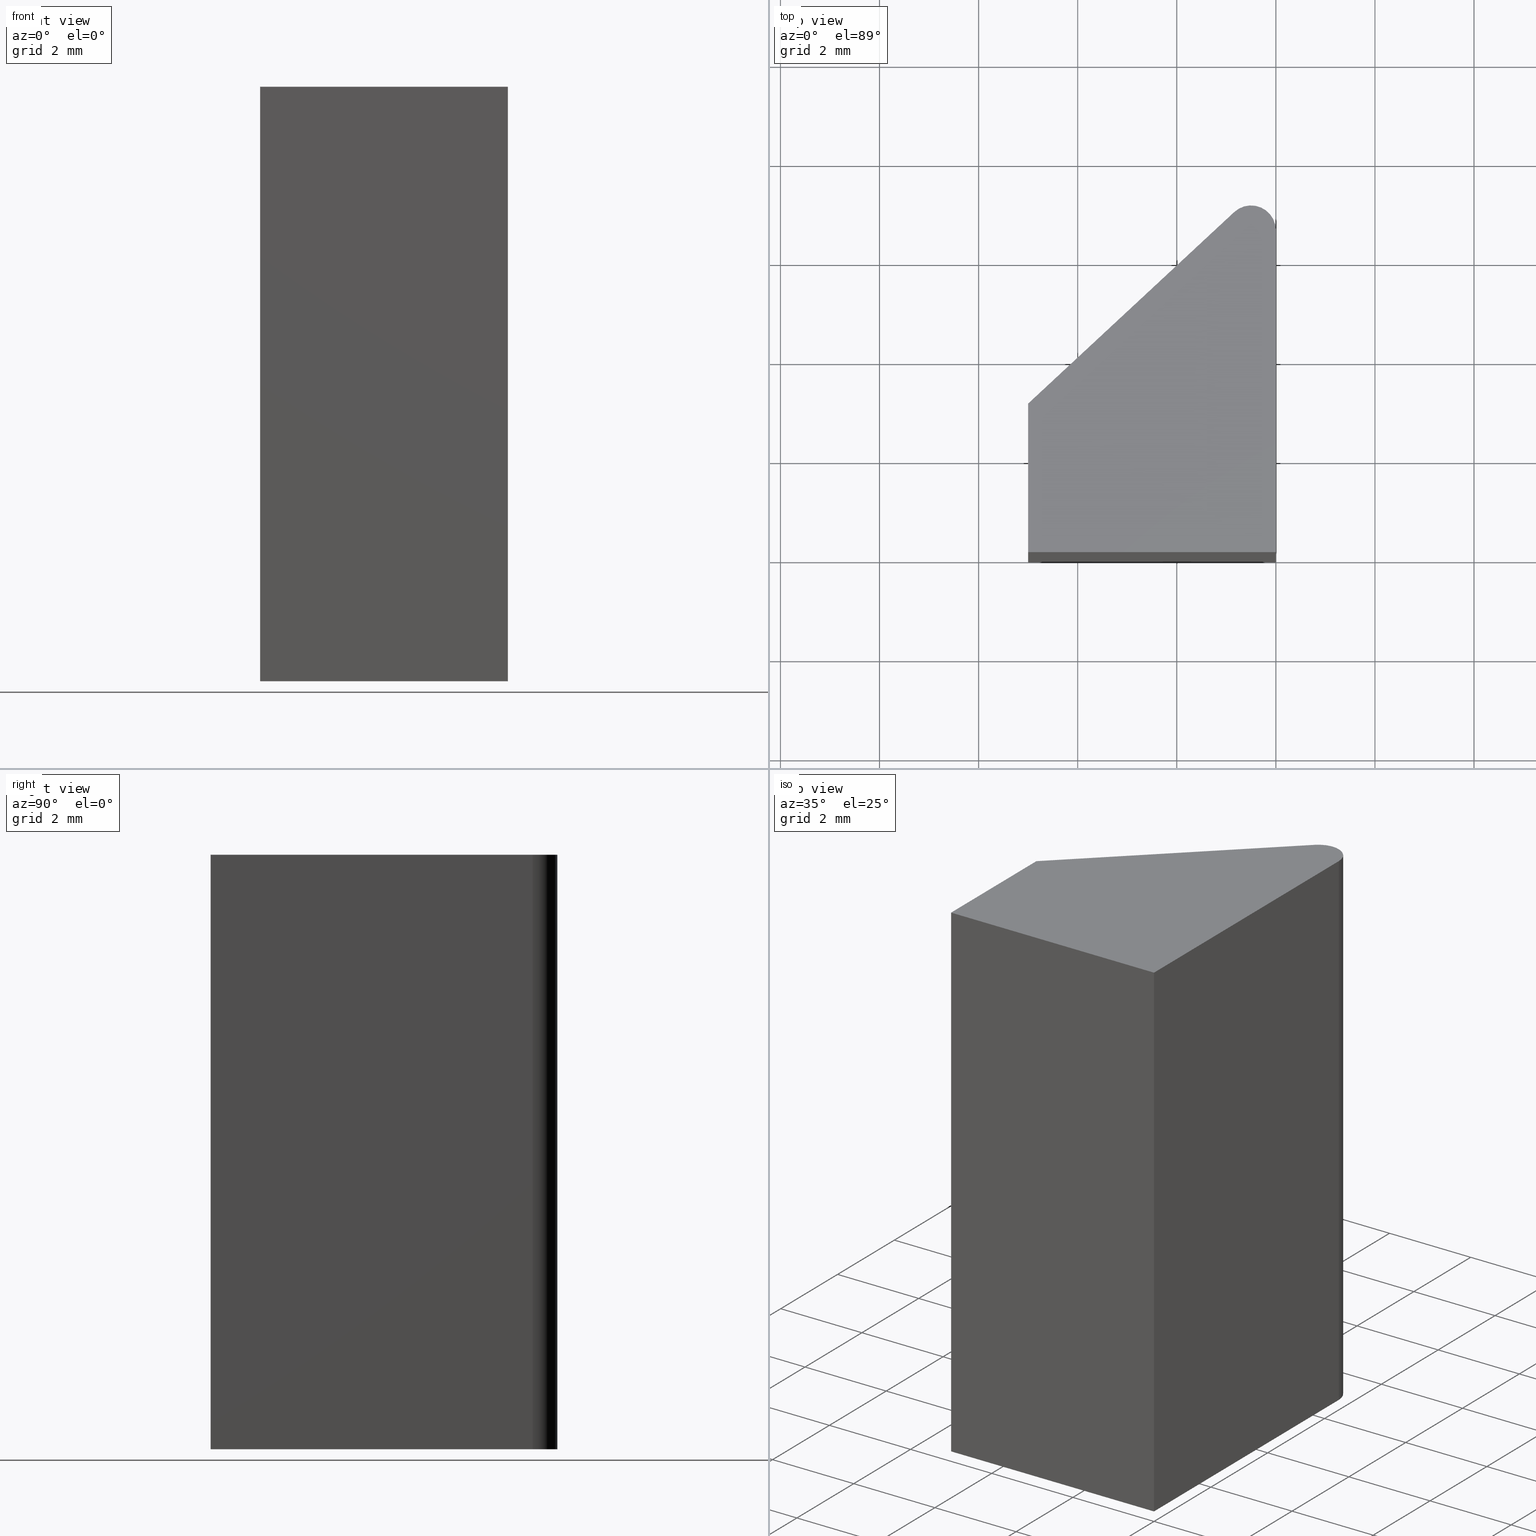
[diagram: canonical four-view strip — front | top / right | iso, engineering-drawing reading convention]
A machine part, canonical four-view strip (front | top / right | iso — engineering-drawing reading convention). The complete STEP part file that produces these views, byte-faithful:
ISO-10303-21;
HEADER;
/* Generated by software containing ST-Developer
 * from STEP Tools, Inc. (www.steptools.com) 
 */

FILE_DESCRIPTION(
/* description */ (''),
/* implementation_level */ '2;1');

FILE_NAME(
/* name */ 'E_3_01_06_06_00_WKZ-0222.stp',
/* time_stamp */ '2025-11-24T13:16:51+01:00',
/* author */ ('d.fischer'),
/* organization */ (''),
/* preprocessor_version */ 'ST-DEVELOPER v20',
/* originating_system */ 'Autodesk Inventor 2025',
/* authorisation */ '');

FILE_SCHEMA (('AUTOMOTIVE_DESIGN { 1 0 10303 214 3 1 1 }'));
ENDSEC;

DATA;
#10=MECHANICAL_DESIGN_GEOMETRIC_PRESENTATION_REPRESENTATION('',(#14,#15),
#228);
#11=SHAPE_REPRESENTATION_RELATIONSHIP('SRR','None',#235,#12);
#12=ADVANCED_BREP_SHAPE_REPRESENTATION('',(#13),#227);
#13=MANIFOLD_SOLID_BREP('Volumenk\X\F6rper1',#127);
#14=STYLED_ITEM('',(#245),#125);
#15=STYLED_ITEM('',(#244),#13);
#16=CYLINDRICAL_SURFACE('',#154,0.5);
#17=FACE_OUTER_BOUND('',#24,.T.);
#18=FACE_OUTER_BOUND('',#25,.T.);
#19=FACE_OUTER_BOUND('',#26,.T.);
#20=FACE_OUTER_BOUND('',#27,.T.);
#21=FACE_OUTER_BOUND('',#28,.T.);
#22=FACE_OUTER_BOUND('',#29,.T.);
#23=FACE_OUTER_BOUND('',#30,.T.);
#24=EDGE_LOOP('',(#84,#85,#86,#87,#88));
#25=EDGE_LOOP('',(#89,#90,#91,#92));
#26=EDGE_LOOP('',(#93,#94,#95,#96));
#27=EDGE_LOOP('',(#97,#98,#99,#100));
#28=EDGE_LOOP('',(#101,#102,#103,#104));
#29=EDGE_LOOP('',(#105,#106,#107,#108));
#30=EDGE_LOOP('',(#109,#110,#111,#112,#113));
#31=CIRCLE('',#151,0.5);
#32=CIRCLE('',#155,0.5);
#33=LINE('',#196,#46);
#34=LINE('',#198,#47);
#35=LINE('',#200,#48);
#36=LINE('',#202,#49);
#37=LINE('',#207,#50);
#38=LINE('',#208,#51);
#39=LINE('',#209,#52);
#40=LINE('',#212,#53);
#41=LINE('',#213,#54);
#42=LINE('',#217,#55);
#43=LINE('',#220,#56);
#44=LINE('',#221,#57);
#45=LINE('',#223,#58);
#46=VECTOR('',#163,10.);
#47=VECTOR('',#164,10.);
#48=VECTOR('',#165,10.);
#49=VECTOR('',#166,10.);
#50=VECTOR('',#171,10.);
#51=VECTOR('',#172,10.);
#52=VECTOR('',#173,10.);
#53=VECTOR('',#176,10.);
#54=VECTOR('',#177,10.);
#55=VECTOR('',#182,10.);
#56=VECTOR('',#185,10.);
#57=VECTOR('',#186,10.);
#58=VECTOR('',#189,10.);
#59=VERTEX_POINT('',#194);
#60=VERTEX_POINT('',#195);
#61=VERTEX_POINT('',#197);
#62=VERTEX_POINT('',#199);
#63=VERTEX_POINT('',#201);
#64=VERTEX_POINT('',#205);
#65=VERTEX_POINT('',#206);
#66=VERTEX_POINT('',#211);
#67=VERTEX_POINT('',#215);
#68=VERTEX_POINT('',#219);
#69=EDGE_CURVE('',#59,#60,#33,.T.);
#70=EDGE_CURVE('',#61,#59,#34,.T.);
#71=EDGE_CURVE('',#62,#61,#35,.T.);
#72=EDGE_CURVE('',#63,#62,#36,.T.);
#73=EDGE_CURVE('',#60,#63,#31,.T.);
#74=EDGE_CURVE('',#64,#65,#37,.T.);
#75=EDGE_CURVE('',#65,#62,#38,.T.);
#76=EDGE_CURVE('',#64,#61,#39,.T.);
#77=EDGE_CURVE('',#65,#66,#40,.T.);
#78=EDGE_CURVE('',#66,#63,#41,.T.);
#79=EDGE_CURVE('',#66,#67,#32,.T.);
#80=EDGE_CURVE('',#67,#60,#42,.T.);
#81=EDGE_CURVE('',#67,#68,#43,.T.);
#82=EDGE_CURVE('',#59,#68,#44,.T.);
#83=EDGE_CURVE('',#68,#64,#45,.T.);
#84=ORIENTED_EDGE('',*,*,#69,.F.);
#85=ORIENTED_EDGE('',*,*,#70,.F.);
#86=ORIENTED_EDGE('',*,*,#71,.F.);
#87=ORIENTED_EDGE('',*,*,#72,.F.);
#88=ORIENTED_EDGE('',*,*,#73,.F.);
#89=ORIENTED_EDGE('',*,*,#74,.T.);
#90=ORIENTED_EDGE('',*,*,#75,.T.);
#91=ORIENTED_EDGE('',*,*,#71,.T.);
#92=ORIENTED_EDGE('',*,*,#76,.F.);
#93=ORIENTED_EDGE('',*,*,#77,.T.);
#94=ORIENTED_EDGE('',*,*,#78,.T.);
#95=ORIENTED_EDGE('',*,*,#72,.T.);
#96=ORIENTED_EDGE('',*,*,#75,.F.);
#97=ORIENTED_EDGE('',*,*,#79,.T.);
#98=ORIENTED_EDGE('',*,*,#80,.T.);
#99=ORIENTED_EDGE('',*,*,#73,.T.);
#100=ORIENTED_EDGE('',*,*,#78,.F.);
#101=ORIENTED_EDGE('',*,*,#81,.T.);
#102=ORIENTED_EDGE('',*,*,#82,.F.);
#103=ORIENTED_EDGE('',*,*,#69,.T.);
#104=ORIENTED_EDGE('',*,*,#80,.F.);
#105=ORIENTED_EDGE('',*,*,#83,.T.);
#106=ORIENTED_EDGE('',*,*,#76,.T.);
#107=ORIENTED_EDGE('',*,*,#70,.T.);
#108=ORIENTED_EDGE('',*,*,#82,.T.);
#109=ORIENTED_EDGE('',*,*,#74,.F.);
#110=ORIENTED_EDGE('',*,*,#83,.F.);
#111=ORIENTED_EDGE('',*,*,#81,.F.);
#112=ORIENTED_EDGE('',*,*,#79,.F.);
#113=ORIENTED_EDGE('',*,*,#77,.F.);
#114=PLANE('',#150);
#115=PLANE('',#152);
#116=PLANE('',#153);
#117=PLANE('',#156);
#118=PLANE('',#157);
#119=PLANE('',#158);
#120=ADVANCED_FACE('',(#17),#114,.F.);
#121=ADVANCED_FACE('',(#18),#115,.T.);
#122=ADVANCED_FACE('',(#19),#116,.T.);
#123=ADVANCED_FACE('',(#20),#16,.T.);
#124=ADVANCED_FACE('',(#21),#117,.T.);
#125=ADVANCED_FACE('',(#22),#118,.T.);
#126=ADVANCED_FACE('',(#23),#119,.T.);
#127=CLOSED_SHELL('',(#120,#121,#122,#123,#124,#125,#126));
#128=DERIVED_UNIT_ELEMENT(#131,1.);
#129=DERIVED_UNIT_ELEMENT(#230,-3.);
#130=DIMENSIONAL_EXPONENTS(0.,1.,0.,0.,0.,0.,0.);
#131=(
CONVERSION_BASED_UNIT('gram',#133)
MASS_UNIT()
NAMED_UNIT(#130)
);
#132=(
MASS_UNIT()
NAMED_UNIT(*)
SI_UNIT(.KILO.,.GRAM.)
);
#133=MASS_MEASURE_WITH_UNIT(MASS_MEASURE(0.001),#132);
#134=DERIVED_UNIT((#128,#129));
#135=MEASURE_REPRESENTATION_ITEM('density measure',
POSITIVE_RATIO_MEASURE(8.03),#134);
#136=PROPERTY_DEFINITION_REPRESENTATION(#141,#138);
#137=PROPERTY_DEFINITION_REPRESENTATION(#142,#139);
#138=REPRESENTATION('material name',(#140),#227);
#139=REPRESENTATION('density',(#135),#227);
#140=DESCRIPTIVE_REPRESENTATION_ITEM('1.4301','1.4301');
#141=PROPERTY_DEFINITION('material property','material name',#237);
#142=PROPERTY_DEFINITION('material property','density of part',#237);
#143=DATE_TIME_ROLE('creation_date');
#144=APPLIED_DATE_AND_TIME_ASSIGNMENT(#145,#143,(#237));
#145=DATE_AND_TIME(#146,#147);
#146=CALENDAR_DATE(2011,21,10);
#147=LOCAL_TIME(0,0,0.,#148);
#148=COORDINATED_UNIVERSAL_TIME_OFFSET(0,0,.BEHIND.);
#149=AXIS2_PLACEMENT_3D('',#192,#159,#160);
#150=AXIS2_PLACEMENT_3D('',#193,#161,#162);
#151=AXIS2_PLACEMENT_3D('',#203,#167,#168);
#152=AXIS2_PLACEMENT_3D('',#204,#169,#170);
#153=AXIS2_PLACEMENT_3D('',#210,#174,#175);
#154=AXIS2_PLACEMENT_3D('',#214,#178,#179);
#155=AXIS2_PLACEMENT_3D('',#216,#180,#181);
#156=AXIS2_PLACEMENT_3D('',#218,#183,#184);
#157=AXIS2_PLACEMENT_3D('',#222,#187,#188);
#158=AXIS2_PLACEMENT_3D('',#224,#190,#191);
#159=DIRECTION('axis',(0.,0.,1.));
#160=DIRECTION('refdir',(1.,0.,0.));
#161=DIRECTION('center_axis',(0.,0.,1.));
#162=DIRECTION('ref_axis',(1.,0.,0.));
#163=DIRECTION('',(-3.73632748671928E-16,1.,0.));
#164=DIRECTION('',(1.,2.11954672609056E-16,0.));
#165=DIRECTION('',(-1.85037170770859E-16,-1.,0.));
#166=DIRECTION('',(-0.732464232495423,-0.680805514163106,0.));
#167=DIRECTION('center_axis',(0.,0.,1.));
#168=DIRECTION('ref_axis',(-1.,0.,0.));
#169=DIRECTION('center_axis',(-1.,1.85037170770859E-16,0.));
#170=DIRECTION('ref_axis',(0.,0.,1.));
#171=DIRECTION('',(1.85037170770859E-16,1.,0.));
#172=DIRECTION('',(0.,0.,-1.));
#173=DIRECTION('',(0.,0.,-1.));
#174=DIRECTION('center_axis',(-0.680805514163106,0.732464232495423,0.));
#175=DIRECTION('ref_axis',(0.,0.,1.));
#176=DIRECTION('',(0.732464232495423,0.680805514163106,0.));
#177=DIRECTION('',(0.,0.,-1.));
#178=DIRECTION('center_axis',(0.,0.,1.));
#179=DIRECTION('ref_axis',(-1.,0.,0.));
#180=DIRECTION('center_axis',(0.,0.,-1.));
#181=DIRECTION('ref_axis',(-1.,0.,0.));
#182=DIRECTION('',(0.,0.,-1.));
#183=DIRECTION('center_axis',(1.,3.73632748671928E-16,0.));
#184=DIRECTION('ref_axis',(0.,0.,-1.));
#185=DIRECTION('',(3.73632748671928E-16,-1.,0.));
#186=DIRECTION('',(0.,0.,1.));
#187=DIRECTION('center_axis',(2.11954672609056E-16,-1.,0.));
#188=DIRECTION('ref_axis',(0.,0.,-1.));
#189=DIRECTION('',(-1.,-2.11954672609056E-16,0.));
#190=DIRECTION('center_axis',(0.,0.,1.));
#191=DIRECTION('ref_axis',(1.,0.,0.));
#192=CARTESIAN_POINT('',(0.,0.,0.));
#193=CARTESIAN_POINT('Origin',(-2.08490941817522,2.88574699083849,-6.));
#194=CARTESIAN_POINT('',(4.44089209850063E-15,2.22044604925031E-15,-6.));
#195=CARTESIAN_POINT('',(2.0122792321331E-15,6.5,-6.));
#196=CARTESIAN_POINT('',(2.0122792321331E-15,6.5,-6.));
#197=CARTESIAN_POINT('',(-5.,1.16067268620503E-15,-6.));
#198=CARTESIAN_POINT('',(4.44089209850063E-15,2.22044604925031E-15,-6.));
#199=CARTESIAN_POINT('',(-5.,3.,-6.));
#200=CARTESIAN_POINT('',(-5.,1.16067268620503E-15,-6.));
#201=CARTESIAN_POINT('',(-0.840402757081551,6.86623211624771,-6.));
#202=CARTESIAN_POINT('',(-5.,3.,-6.));
#203=CARTESIAN_POINT('Origin',(-0.499999999999998,6.5,-6.));
#204=CARTESIAN_POINT('Origin',(-5.,1.16067268620503E-15,0.));
#205=CARTESIAN_POINT('',(-5.,1.16067268620503E-15,6.));
#206=CARTESIAN_POINT('',(-5.,3.,6.));
#207=CARTESIAN_POINT('',(-5.,1.16067268620503E-15,6.));
#208=CARTESIAN_POINT('',(-5.,3.,0.));
#209=CARTESIAN_POINT('',(-5.,1.16067268620503E-15,0.));
#210=CARTESIAN_POINT('Origin',(-5.,3.,0.));
#211=CARTESIAN_POINT('',(-0.840402757081551,6.86623211624771,6.));
#212=CARTESIAN_POINT('',(-5.,3.,6.));
#213=CARTESIAN_POINT('',(-0.840402757081551,6.86623211624771,0.));
#214=CARTESIAN_POINT('Origin',(-0.499999999999998,6.5,0.));
#215=CARTESIAN_POINT('',(2.0122792321331E-15,6.5,6.));
#216=CARTESIAN_POINT('Origin',(-0.499999999999998,6.5,6.));
#217=CARTESIAN_POINT('',(2.0122792321331E-15,6.5,0.));
#218=CARTESIAN_POINT('Origin',(2.0122792321331E-15,6.5,0.));
#219=CARTESIAN_POINT('',(4.44089209850063E-15,2.22044604925031E-15,6.));
#220=CARTESIAN_POINT('',(2.0122792321331E-15,6.5,6.));
#221=CARTESIAN_POINT('',(4.44089209850063E-15,2.22044604925031E-15,0.));
#222=CARTESIAN_POINT('Origin',(4.44089209850063E-15,2.22044604925031E-15,
0.));
#223=CARTESIAN_POINT('',(4.44089209850063E-15,2.22044604925031E-15,6.));
#224=CARTESIAN_POINT('Origin',(-2.08490941817522,2.88574699083849,6.));
#225=UNCERTAINTY_MEASURE_WITH_UNIT(LENGTH_MEASURE(0.01),#229,
'DISTANCE_ACCURACY_VALUE',
'Maximum model space distance between geometric entities at asserted c
onnectivities');
#226=UNCERTAINTY_MEASURE_WITH_UNIT(LENGTH_MEASURE(0.01),#229,
'DISTANCE_ACCURACY_VALUE',
'Maximum model space distance between geometric entities at asserted c
onnectivities');
#227=(
GEOMETRIC_REPRESENTATION_CONTEXT(3)
GLOBAL_UNCERTAINTY_ASSIGNED_CONTEXT((#225))
GLOBAL_UNIT_ASSIGNED_CONTEXT((#229,#231,#232))
REPRESENTATION_CONTEXT('','3D')
);
#228=(
GEOMETRIC_REPRESENTATION_CONTEXT(3)
GLOBAL_UNCERTAINTY_ASSIGNED_CONTEXT((#226))
GLOBAL_UNIT_ASSIGNED_CONTEXT((#229,#231,#232))
REPRESENTATION_CONTEXT('','3D')
);
#229=(
LENGTH_UNIT()
NAMED_UNIT(*)
SI_UNIT(.MILLI.,.METRE.)
);
#230=(
LENGTH_UNIT()
NAMED_UNIT(*)
SI_UNIT(.CENTI.,.METRE.)
);
#231=(
NAMED_UNIT(*)
PLANE_ANGLE_UNIT()
SI_UNIT($,.RADIAN.)
);
#232=(
NAMED_UNIT(*)
SI_UNIT($,.STERADIAN.)
SOLID_ANGLE_UNIT()
);
#233=SHAPE_DEFINITION_REPRESENTATION(#234,#235);
#234=PRODUCT_DEFINITION_SHAPE('',$,#237);
#235=SHAPE_REPRESENTATION('',(#149),#227);
#236=PRODUCT_DEFINITION_CONTEXT('part definition',#241,'design');
#237=PRODUCT_DEFINITION('WKZ-0222','E_3_01_06_06_00_WKZ-0222',#238,#236);
#238=PRODUCT_DEFINITION_FORMATION('',$,#243);
#239=PRODUCT_RELATED_PRODUCT_CATEGORY('E_3_01_06_06_00_WKZ-0222',
'E_3_01_06_06_00_WKZ-0222',(#243));
#240=APPLICATION_PROTOCOL_DEFINITION('international standard',
'automotive_design',2009,#241);
#241=APPLICATION_CONTEXT(
'Core Data for Automotive Mechanical Design Process');
#242=PRODUCT_CONTEXT('part definition',#241,'mechanical');
#243=PRODUCT('WKZ-0222','E_3_01_06_06_00_WKZ-0222',$,(#242));
#244=PRESENTATION_STYLE_ASSIGNMENT((#246));
#245=PRESENTATION_STYLE_ASSIGNMENT((#247));
#246=SURFACE_STYLE_USAGE(.BOTH.,#250);
#247=SURFACE_STYLE_USAGE(.BOTH.,#251);
#248=SURFACE_STYLE_RENDERING_WITH_PROPERTIES($,#258,(#249));
#249=SURFACE_STYLE_TRANSPARENT(0.);
#250=SURFACE_SIDE_STYLE('',(#252,#248));
#251=SURFACE_SIDE_STYLE('',(#253));
#252=SURFACE_STYLE_FILL_AREA(#254);
#253=SURFACE_STYLE_FILL_AREA(#255);
#254=FILL_AREA_STYLE('',(#256));
#255=FILL_AREA_STYLE('',(#257));
#256=FILL_AREA_STYLE_COLOUR('',#258);
#257=FILL_AREA_STYLE_COLOUR('',#259);
#258=COLOUR_RGB('',0.92156862745098,0.92156862745098,0.92156862745098);
#259=COLOUR_RGB('',0.16078431372549,0.16078431372549,0.16078431372549);
ENDSEC;
END-ISO-10303-21;
